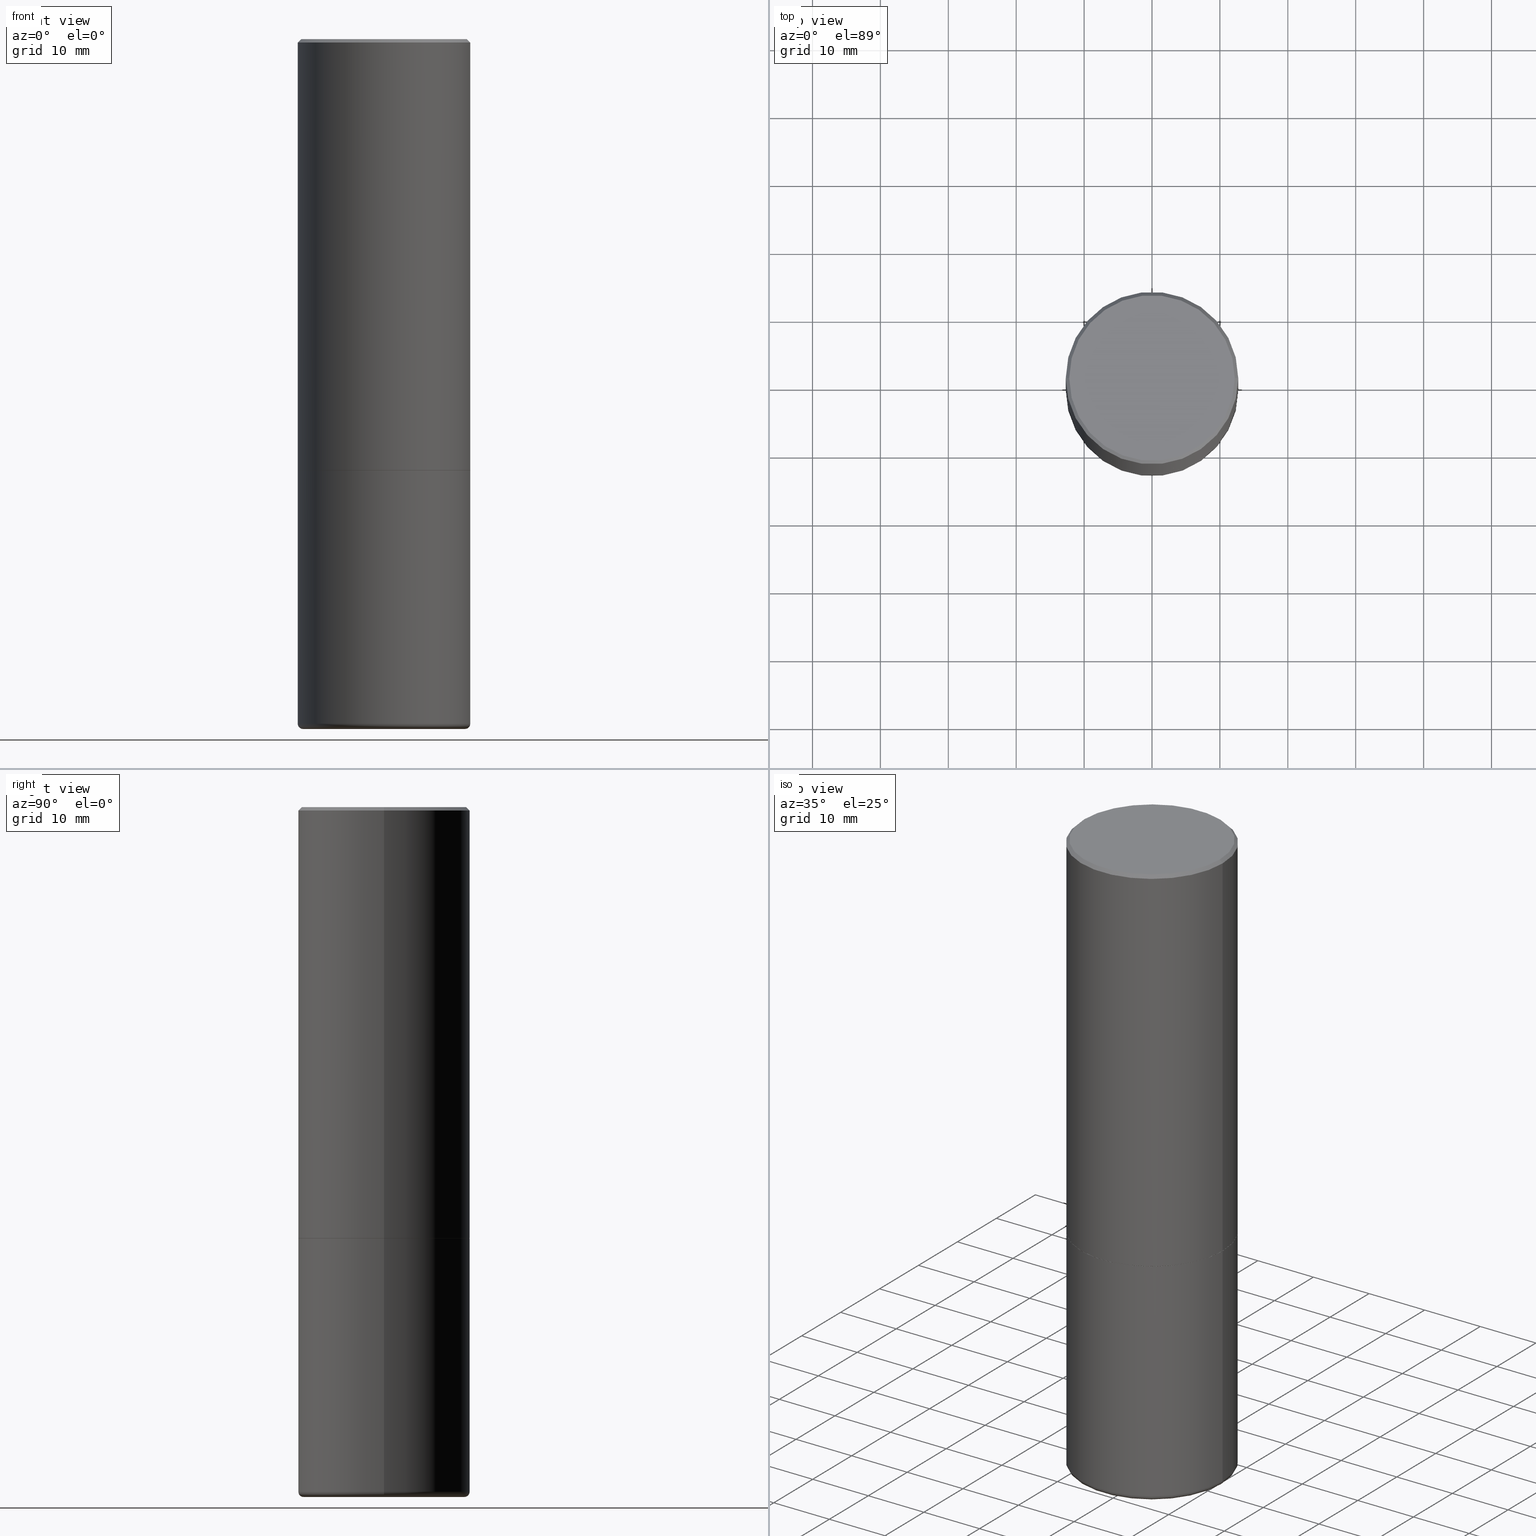
[diagram: canonical four-view strip — front | top / right | iso, engineering-drawing reading convention]
A machine part, canonical four-view strip (front | top / right | iso — engineering-drawing reading convention). The complete STEP part file that produces these views, byte-faithful:
ISO-10303-21;
HEADER;
FILE_DESCRIPTION (( 'STEP AP203' ),
    '1' );
FILE_NAME ('32587.STEP',
    '2022-04-26T19:38:57',
    ( '' ),
    ( '' ),
    'SwSTEP 2.0',
    'SolidWorks 2022',
    '' );
FILE_SCHEMA (( 'CONFIG_CONTROL_DESIGN' ));
ENDSEC;

DATA;
#1 = ORIENTED_EDGE ( 'NONE', *, *, #436, .T. ) ;
#2 = FACE_OUTER_BOUND ( 'NONE', #15, .T. ) ;
#3 = ADVANCED_FACE ( 'NONE', ( #276 ), #169, .T. ) ;
#4 = UNCERTAINTY_MEASURE_WITH_UNIT (LENGTH_MEASURE( 1.000000000000000082E-05 ), #13, 'distance_accuracy_value', 'NONE');
#5 = APPROVAL_PERSON_ORGANIZATION ( #420, #324, #385 ) ;
#6 = ORIENTED_EDGE ( 'NONE', *, *, #272, .F. ) ;
#7 = DIRECTION ( 'NONE',  ( -2.445468806185136597E-29, 3.491481338843145583E-15, 1.000000000000000000 ) ) ;
#8 = ORIENTED_EDGE ( 'NONE', *, *, #368, .F. ) ;
#9 = DIRECTION ( 'NONE',  ( 1.000000000000000000, -6.982962677686266711E-15, 4.883557194083113462E-29 ) ) ;
#10 = EDGE_LOOP ( 'NONE', ( #389, #309, #267, #390 ) ) ;
#11 = MECHANICAL_CONTEXT ( 'NONE', #233, 'mechanical' ) ;
#12 = ORIENTED_EDGE ( 'NONE', *, *, #439, .T. ) ;
#13 =( CONVERSION_BASED_UNIT ( 'INCH', #112 ) LENGTH_UNIT ( ) NAMED_UNIT ( #176 ) );
#14 = DIRECTION ( 'NONE',  ( -2.445468806185136597E-29, 3.491481338843145583E-15, 1.000000000000000000 ) ) ;
#15 = EDGE_LOOP ( 'NONE', ( #378, #278, #269, #28 ) ) ;
#16 = CARTESIAN_POINT ( 'NONE',  ( 9.708511160554992872E-29, -1.386118091520728738E-14, -3.970000000000000195 ) ) ;
#17 = CARTESIAN_POINT ( 'NONE',  ( 9.708511160554992872E-29, -1.386118091520728738E-14, -3.970000000000000195 ) ) ;
#18 = DIRECTION ( 'NONE',  ( 0.000000000000000000, 0.000000000000000000, 1.000000000000000000 ) ) ;
#19 = LINE ( 'NONE', #225, #262 ) ;
#20 = EDGE_CURVE ( 'NONE', #441, #374, #270, .T. ) ;
#21 = APPROVAL_STATUS ( 'not_yet_approved' ) ;
#22 = CALENDAR_DATE ( 2022, 26, 4 ) ;
#23 = COORDINATED_UNIVERSAL_TIME_OFFSET ( 5, 0, .BEHIND. ) ;
#24 = COORDINATED_UNIVERSAL_TIME_OFFSET ( 5, 0, .BEHIND. ) ;
#25 = AXIS2_PLACEMENT_3D ( 'NONE', #16, #331, #9 ) ;
#26 = FACE_OUTER_BOUND ( 'NONE', #402, .T. ) ;
#27 = DIRECTION ( 'NONE',  ( 0.7071067811868130271, -2.468850131085038979E-15, 0.7071067811862817853 ) ) ;
#28 = ORIENTED_EDGE ( 'NONE', *, *, #94, .F. ) ;
#29 = DIRECTION ( 'NONE',  ( 1.000000000000000000, -6.982962677686266711E-15, 0.000000000000000000 ) ) ;
#30 = DIRECTION ( 'NONE',  ( 2.445468806185136597E-29, -3.491481338843145583E-15, -1.000000000000000000 ) ) ;
#31 = EDGE_CURVE ( 'NONE', #172, #117, #333, .T. ) ;
#32 = CARTESIAN_POINT ( 'NONE',  ( -0.4699999999999999734, -1.052163005713481828E-14, -3.970000000000000195 ) ) ;
#33 = CIRCLE ( 'NONE', #353, 0.4694764278068817021 ) ;
#34 = APPROVAL_PERSON_ORGANIZATION ( #197, #242, #338 ) ;
#35 = VERTEX_POINT ( 'NONE', #292 ) ;
#36 = DIRECTION ( 'NONE',  ( -2.445468806185136597E-29, 3.491481338843145583E-15, 1.000000000000000000 ) ) ;
#37 = DIRECTION ( 'NONE',  ( 1.000000000000000000, -6.982962677686265133E-15, 0.000000000000000000 ) ) ;
#38 = CC_DESIGN_PERSON_AND_ORGANIZATION_ASSIGNMENT ( #60, #300, ( #122 ) ) ;
#39 = CARTESIAN_POINT ( 'NONE',  ( -0.4799999999999996492, 3.386736898677836830E-15, 1.280553747027767124E-17 ) ) ;
#40 = AXIS2_PLACEMENT_3D ( 'NONE', #65, #308, #78 ) ;
#41 = CIRCLE ( 'NONE', #114, 0.4989999999999999991 ) ;
#42 = CC_DESIGN_SECURITY_CLASSIFICATION ( #405, ( #320 ) ) ;
#43 = CARTESIAN_POINT ( 'NONE',  ( 9.781864051038224708E-29, -1.396590940228700310E-14, -3.999995430854691669 ) ) ;
#44 = EDGE_LOOP ( 'NONE', ( #355, #79 ) ) ;
#45 = VERTEX_POINT ( 'NONE', #98 ) ;
#46 =( NAMED_UNIT ( * ) PLANE_ANGLE_UNIT ( ) SI_UNIT ( $, .RADIAN. ) );
#47 = ORIENTED_EDGE ( 'NONE', *, *, #410, .F. ) ;
#48 = ADVANCED_FACE ( 'NONE', ( #26 ), #100, .T. ) ;
#49 = LINE ( 'NONE', #183, #397 ) ;
#50 = FACE_OUTER_BOUND ( 'NONE', #326, .T. ) ;
#51 = ORIENTED_EDGE ( 'NONE', *, *, #133, .T. ) ;
#52 = LOCAL_TIME ( 15, 38, 57.00000000000000000, #431 ) ;
#53 = CARTESIAN_POINT ( 'NONE',  ( 9.781864051038224708E-29, -1.396590940228700310E-14, -3.999995430854691669 ) ) ;
#54 = DIRECTION ( 'NONE',  ( 1.000000000000000000, -6.982962677686266711E-15, 0.000000000000000000 ) ) ;
#55 = CARTESIAN_POINT ( 'NONE',  ( 0.000000000000000000, 0.000000000000000000, 0.000000000000000000 ) ) ;
#56 = EDGE_CURVE ( 'NONE', #192, #45, #58, .T. ) ;
#57 = CYLINDRICAL_SURFACE ( 'NONE', #425, 0.4999999999999998335 ) ;
#58 = CIRCLE ( 'NONE', #125, 0.5000000000000000000 ) ;
#59 = AXIS2_PLACEMENT_3D ( 'NONE', #321, #7, #144 ) ;
#60 = PERSON_AND_ORGANIZATION ( #120, #201 ) ;
#61 = APPROVAL_STATUS ( 'not_yet_approved' ) ;
#62 = PLANE ( 'NONE',  #215 ) ;
#63 = AXIS2_PLACEMENT_3D ( 'NONE', #32, #379, #177 ) ;
#64 = LINE ( 'NONE', #127, #340 ) ;
#65 = CARTESIAN_POINT ( 'NONE',  ( 6.113672015462842613E-29, -8.728703347107864943E-15, -2.500000000000000000 ) ) ;
#66 = CARTESIAN_POINT ( 'NONE',  ( 6.113672015462840371E-29, -8.728703347107863365E-15, -2.499999999999999556 ) ) ;
#67 = ADVANCED_FACE ( 'NONE', ( #296 ), #121, .T. ) ;
#68 = ORIENTED_EDGE ( 'NONE', *, *, #287, .F. ) ;
#69 = CARTESIAN_POINT ( 'NONE',  ( 4.890937612370301184E-31, -6.982962677686329819E-17, -0.02000000000000011144 ) ) ;
#70 = ORIENTED_EDGE ( 'NONE', *, *, #94, .T. ) ;
#71 = CIRCLE ( 'NONE', #130, 0.5000000000000000000 ) ;
#72 = PLANE ( 'NONE',  #373 ) ;
#73 = CONICAL_SURFACE ( 'NONE', #413, 0.4989999999999999991, 0.7853981633978239785 ) ;
#74 = AXIS2_PLACEMENT_3D ( 'NONE', #212, #273, #351 ) ;
#75 = CC_DESIGN_APPROVAL ( #242, ( #405 ) ) ;
#76 = ORIENTED_EDGE ( 'NONE', *, *, #371, .T. ) ;
#77 = FACE_OUTER_BOUND ( 'NONE', #10, .T. ) ;
#78 = DIRECTION ( 'NONE',  ( 1.000000000000000000, -6.982962677686269077E-15, 0.000000000000000000 ) ) ;
#79 = ORIENTED_EDGE ( 'NONE', *, *, #199, .T. ) ;
#80 = DIRECTION ( 'NONE',  ( 1.000000000000000000, -6.982962677686267499E-15, 4.876036955247132767E-29 ) ) ;
#81 = CALENDAR_DATE ( 2022, 26, 4 ) ;
#82 = CIRCLE ( 'NONE', #302, 0.5000000000000000000 ) ;
#83 = VERTEX_POINT ( 'NONE', #124 ) ;
#84 = LINE ( 'NONE', #148, #190 ) ;
#85 = EDGE_CURVE ( 'NONE', #35, #143, #19, .T. ) ;
#86 = ORIENTED_EDGE ( 'NONE', *, *, #228, .F. ) ;
#87 = COORDINATED_UNIVERSAL_TIME_OFFSET ( 5, 0, .BEHIND. ) ;
#88 = FACE_OUTER_BOUND ( 'NONE', #218, .T. ) ;
#89 = ORIENTED_EDGE ( 'NONE', *, *, #410, .T. ) ;
#90 = CARTESIAN_POINT ( 'NONE',  ( 6.113672015462840371E-29, -8.728703347107863365E-15, -2.499999999999999556 ) ) ;
#91 = CC_DESIGN_PERSON_AND_ORGANIZATION_ASSIGNMENT ( #416, #223, ( #187 ) ) ;
#92 = CARTESIAN_POINT ( 'NONE',  ( 6.111226546656657010E-29, -8.725211865769021935E-15, -2.499000000000000110 ) ) ;
#93 = MANIFOLD_SOLID_BREP ( 'Body-Move/Copy2[1]', #432 ) ;
#94 = EDGE_CURVE ( 'NONE', #143, #117, #71, .T. ) ;
#95 = CIRCLE ( 'NONE', #108, 0.4999999999999997224 ) ;
#96 = CARTESIAN_POINT ( 'NONE',  ( -0.5000000000000000000, -8.448070674724411945E-16, -2.499000000000000110 ) ) ;
#97 = ORIENTED_EDGE ( 'NONE', *, *, #287, .T. ) ;
#98 = CARTESIAN_POINT ( 'NONE',  ( -0.5000000000000000000, -1.030846723640678645E-14, -3.970000000000000195 ) ) ;
#99 = EDGE_LOOP ( 'NONE', ( #330, #178, #357, #412 ) ) ;
#100 = TOROIDAL_SURFACE ( 'NONE', #249, 0.4699999999999999734, 0.03000000000000003011 ) ;
#101 = EDGE_CURVE ( 'NONE', #352, #83, #380, .T. ) ;
#102 = CIRCLE ( 'NONE', #271, 0.5000000000000000000 ) ;
#103 = DIRECTION ( 'NONE',  ( -1.000000000000000000, 6.982962677686266711E-15, 0.000000000000000000 ) ) ;
#104 = CARTESIAN_POINT ( 'NONE',  ( -0.5000000000000000000, 3.552713678800500929E-15, -2.459467545127452891E-29 ) ) ;
#105 = CARTESIAN_POINT ( 'NONE',  ( -0.4999999999999997224, 3.421651712066268085E-15, -0.02000000000000011144 ) ) ;
#106 = VERTEX_POINT ( 'NONE', #193 ) ;
#107 = DIRECTION ( 'NONE',  ( -2.445468806185136877E-29, 3.491481338843145188E-15, 1.000000000000000000 ) ) ;
#108 = AXIS2_PLACEMENT_3D ( 'NONE', #152, #354, #328 ) ;
#109 = APPROVAL_PERSON_ORGANIZATION ( #336, #332, #230 ) ;
#110 = CARTESIAN_POINT ( 'NONE',  ( -3.131554243005659264E-46, 4.471029511141341874E-32, 1.280553747030123384E-17 ) ) ;
#111 = DIRECTION ( 'NONE',  ( 0.9998476951563912696, -6.920387862090559512E-15, -0.01745240643727627092 ) ) ;
#112 = LENGTH_MEASURE_WITH_UNIT ( LENGTH_MEASURE( 0.02539999999999999897 ), #217 );
#113 = EDGE_CURVE ( 'NONE', #289, #244, #64, .T. ) ;
#114 = AXIS2_PLACEMENT_3D ( 'NONE', #66, #204, #311 ) ;
#115 = EDGE_LOOP ( 'NONE', ( #118, #12, #216, #47 ) ) ;
#116 = DATE_AND_TIME ( #81, #256 ) ;
#117 = VERTEX_POINT ( 'NONE', #364 ) ;
#118 = ORIENTED_EDGE ( 'NONE', *, *, #196, .T. ) ;
#119 = PRODUCT_RELATED_PRODUCT_CATEGORY ( 'detail', '', ( #187 ) ) ;
#120 = PERSON ( 'UNSPECIFIED', 'UNSPECIFIED', 'UNSPECIFIED', ('UNSPECIFIED'), ('UNSPECIFIED'), ('UNSPECIFIED') ) ;
#121 = CYLINDRICAL_SURFACE ( 'NONE', #179, 0.5000000000000000000 ) ;
#122 = PRODUCT_DEFINITION ( 'UNKNOWN', '', #320, #184 ) ;
#123 = DIRECTION ( 'NONE',  ( 1.000000000000000000, -6.982962677686265922E-15, 0.000000000000000000 ) ) ;
#124 = CARTESIAN_POINT ( 'NONE',  ( 0.4799999999999996492, -3.396558832296480127E-15, 1.280553747032483033E-17 ) ) ;
#125 = AXIS2_PLACEMENT_3D ( 'NONE', #17, #232, #165 ) ;
#126 = CC_DESIGN_APPROVAL ( #324, ( #122 ) ) ;
#127 = CARTESIAN_POINT ( 'NONE',  ( -9.144539233152827906E-19, -1.393729761515964486E-14, -3.991800689325058382 ) ) ;
#128 = PERSON_AND_ORGANIZATION_ROLE ( 'design_supplier' ) ;
#129 = ADVANCED_FACE ( 'NONE', ( #88 ), #57, .T. ) ;
#130 = AXIS2_PLACEMENT_3D ( 'NONE', #92, #424, #266 ) ;
#131 = AXIS2_PLACEMENT_3D ( 'NONE', #53, #146, #123 ) ;
#132 = DIRECTION ( 'NONE',  ( -0.9998476951563912696, 6.920964387254060733E-15, -0.01745240643727627092 ) ) ;
#133 = EDGE_CURVE ( 'NONE', #83, #175, #227, .T. ) ;
#134 = DIRECTION ( 'NONE',  ( -2.445468806185136597E-29, 3.491481338843145583E-15, 1.000000000000000000 ) ) ;
#135 = ORIENTED_EDGE ( 'NONE', *, *, #337, .F. ) ;
#136 = PRODUCT_DEFINITION_SHAPE ( 'NONE', 'NONE',  #122 ) ;
#137 = AXIS2_PLACEMENT_3D ( 'NONE', #174, #350, #29 ) ;
#138 = CARTESIAN_POINT ( 'NONE',  ( 9.762462626014520432E-29, -1.393638316123623151E-14, -3.991800689325058382 ) ) ;
#139 = CYLINDRICAL_SURFACE ( 'NONE', #59, 0.5000000000000000000 ) ;
#140 = DIRECTION ( 'NONE',  ( -2.445468806185136597E-29, 3.491481338843145583E-15, 1.000000000000000000 ) ) ;
#141 = LINE ( 'NONE', #349, #388 ) ;
#142 =( GEOMETRIC_REPRESENTATION_CONTEXT ( 3 ) GLOBAL_UNCERTAINTY_ASSIGNED_CONTEXT ( ( #4 ) ) GLOBAL_UNIT_ASSIGNED_CONTEXT ( ( #13, #46, #392 ) ) REPRESENTATION_CONTEXT ( 'NONE', 'WORKASPACE' ) );
#143 = VERTEX_POINT ( 'NONE', #96 ) ;
#144 = DIRECTION ( 'NONE',  ( 1.000000000000000000, -6.982962677686266711E-15, 4.876176775795935793E-29 ) ) ;
#145 = ADVANCED_FACE ( 'NONE', ( #254 ), #62, .F. ) ;
#146 = DIRECTION ( 'NONE',  ( -2.445468806185136597E-29, 3.491481338843145583E-15, 1.000000000000000000 ) ) ;
#147 = EDGE_LOOP ( 'NONE', ( #185, #1, #222, #314 ) ) ;
#148 = CARTESIAN_POINT ( 'NONE',  ( 0.4999999999999998335, -3.491481338843132566E-15, 2.438088387897967336E-29 ) ) ;
#149 = AXIS2_PLACEMENT_3D ( 'NONE', #291, #220, #322 ) ;
#150 = ORIENTED_EDGE ( 'NONE', *, *, #272, .T. ) ;
#151 = DIRECTION ( 'NONE',  ( -1.000000000000000000, 6.982962677686265922E-15, -4.876176775795935793E-29 ) ) ;
#152 = CARTESIAN_POINT ( 'NONE',  ( 4.890937612370301184E-31, -6.982962677686329819E-17, -0.02000000000000011144 ) ) ;
#153 = CARTESIAN_POINT ( 'NONE',  ( 0.4989999999999999991, -1.221320172327330913E-14, -2.499999999999999556 ) ) ;
#154 = DIRECTION ( 'NONE',  ( -2.445468806185136597E-29, 3.491481338843145583E-15, 1.000000000000000000 ) ) ;
#155 = AXIS2_PLACEMENT_3D ( 'NONE', #90, #134, #54 ) ;
#156 = LOCAL_TIME ( 15, 38, 57.00000000000000000, #195 ) ;
#157 = CALENDAR_DATE ( 2022, 26, 4 ) ;
#158 = ADVANCED_FACE ( 'NONE', ( #306 ), #381, .F. ) ;
#159 = APPROVAL_DATE_TIME ( #198, #242 ) ;
#160 = PERSON_AND_ORGANIZATION_ROLE ( 'classification_officer' ) ;
#161 = AXIS2_PLACEMENT_3D ( 'NONE', #167, #313, #239 ) ;
#162 = DATE_AND_TIME ( #157, #156 ) ;
#163 = DIRECTION ( 'NONE',  ( 1.000000000000000000, -6.982962677686267499E-15, 4.876036955247132767E-29 ) ) ;
#164 = CC_DESIGN_PERSON_AND_ORGANIZATION_ASSIGNMENT ( #294, #160, ( #405 ) ) ;
#165 = DIRECTION ( 'NONE',  ( 1.000000000000000000, -6.982962677686266711E-15, 0.000000000000000000 ) ) ;
#166 = ORIENTED_EDGE ( 'NONE', *, *, #113, .F. ) ;
#167 = CARTESIAN_POINT ( 'NONE',  ( 0.000000000000000000, 0.000000000000000000, 0.000000000000000000 ) ) ;
#168 = ADVANCED_FACE ( 'NONE', ( #343 ), #288, .T. ) ;
#169 = CONICAL_SURFACE ( 'NONE', #207, 0.4999999999999997224, 0.7853981633974467247 ) ;
#170 = TOROIDAL_SURFACE ( 'NONE', #25, 0.4699999999999999734, 0.03000000000000003011 ) ;
#171 = DIRECTION ( 'NONE',  ( 2.438088387897960049E-29, -3.491481338843145188E-15, -1.000000000000000000 ) ) ;
#172 = VERTEX_POINT ( 'NONE', #268 ) ;
#173 = ORIENTED_EDGE ( 'NONE', *, *, #20, .T. ) ;
#174 = CARTESIAN_POINT ( 'NONE',  ( 6.113672015462840371E-29, -8.728703347107863365E-15, -2.499999999999999556 ) ) ;
#175 = VERTEX_POINT ( 'NONE', #221 ) ;
#176 = DIMENSIONAL_EXPONENTS ( 1.000000000000000000, 0.000000000000000000, 0.000000000000000000, 0.000000000000000000, 0.000000000000000000, 0.000000000000000000, 0.000000000000000000 ) ;
#177 = DIRECTION ( 'NONE',  ( -1.000000000000000000, 7.105427357600985293E-15, 0.000000000000000000 ) ) ;
#178 = ORIENTED_EDGE ( 'NONE', *, *, #85, .T. ) ;
#179 = AXIS2_PLACEMENT_3D ( 'NONE', #427, #14, #194 ) ;
#180 = FACE_OUTER_BOUND ( 'NONE', #297, .T. ) ;
#181 = CIRCLE ( 'NONE', #327, 0.4799999999999996492 ) ;
#182 = ADVANCED_FACE ( 'NONE', ( #50 ), #191, .F. ) ;
#183 = CARTESIAN_POINT ( 'NONE',  ( -0.4999999999999998335, 3.552713678800499746E-15, -2.459467545127452330E-29 ) ) ;
#184 = DESIGN_CONTEXT ( 'detailed design', #406, 'design' ) ;
#185 = ORIENTED_EDGE ( 'NONE', *, *, #206, .F. ) ;
#186 = EDGE_LOOP ( 'NONE', ( #418, #285, #347 ) ) ;
#187 = PRODUCT ( '32587', '32587', '', ( #11 ) ) ;
#188 = ORIENTED_EDGE ( 'NONE', *, *, #371, .F. ) ;
#189 = AXIS2_PLACEMENT_3D ( 'NONE', #372, #154, #163 ) ;
#190 = VECTOR ( 'NONE', #363, 39.37007874015748143 ) ;
#191 = PLANE ( 'NONE',  #312 ) ;
#192 = VERTEX_POINT ( 'NONE', #391 ) ;
#193 = CARTESIAN_POINT ( 'NONE',  ( 0.4694764278068821461, -1.718675149525705111E-14, -3.999995430854691669 ) ) ;
#194 = DIRECTION ( 'NONE',  ( 1.000000000000000000, -6.982962677686266711E-15, 4.876176775795935793E-29 ) ) ;
#195 = COORDINATED_UNIVERSAL_TIME_OFFSET ( 5, 0, .BEHIND. ) ;
#196 = EDGE_CURVE ( 'NONE', #117, #143, #367, .T. ) ;
#197 = PERSON_AND_ORGANIZATION ( #120, #201 ) ;
#198 = DATE_AND_TIME ( #301, #304 ) ;
#199 = EDGE_CURVE ( 'NONE', #83, #352, #181, .T. ) ;
#200 = CARTESIAN_POINT ( 'NONE',  ( 6.113672015462842613E-29, -8.728703347107864943E-15, -2.500000000000000000 ) ) ;
#201 = ORGANIZATION ( 'UNSPECIFIED', 'UNSPECIFIED', '' ) ;
#202 = CARTESIAN_POINT ( 'NONE',  ( 9.708511160554992872E-29, -1.386118091520728738E-14, -3.970000000000000195 ) ) ;
#203 = ORIENTED_EDGE ( 'NONE', *, *, #206, .T. ) ;
#204 = DIRECTION ( 'NONE',  ( -2.445468806185136597E-29, 3.491481338843145583E-15, 1.000000000000000000 ) ) ;
#205 = DIRECTION ( 'NONE',  ( 1.000000000000000000, -6.982962677686266711E-15, 0.000000000000000000 ) ) ;
#206 = EDGE_CURVE ( 'NONE', #244, #45, #263, .T. ) ;
#207 = AXIS2_PLACEMENT_3D ( 'NONE', #408, #30, #235 ) ;
#208 = AXIS2_PLACEMENT_3D ( 'NONE', #290, #140, #37 ) ;
#209 = CARTESIAN_POINT ( 'NONE',  ( 6.113672015462842613E-29, -8.728703347107864943E-15, -2.500000000000000000 ) ) ;
#210 = CARTESIAN_POINT ( 'NONE',  ( -0.4999999999999997224, 3.421651712066268085E-15, -0.02000000000000011144 ) ) ;
#211 = ORIENTED_EDGE ( 'NONE', *, *, #395, .T. ) ;
#212 = CARTESIAN_POINT ( 'NONE',  ( 4.890937612370301184E-31, -6.982962677686329819E-17, -0.02000000000000011144 ) ) ;
#213 = ADVANCED_FACE ( 'NONE', ( #316 ), #72, .F. ) ;
#214 = DIRECTION ( 'NONE',  ( -2.445468806185136597E-29, 3.491481338843145583E-15, 1.000000000000000000 ) ) ;
#215 = AXIS2_PLACEMENT_3D ( 'NONE', #200, #360, #307 ) ;
#216 = ORIENTED_EDGE ( 'NONE', *, *, #428, .F. ) ;
#217 =( LENGTH_UNIT ( ) NAMED_UNIT ( * ) SI_UNIT ( $, .METRE. ) );
#218 = EDGE_LOOP ( 'NONE', ( #382, #70, #89, #135 ) ) ;
#219 = ORIENTED_EDGE ( 'NONE', *, *, #20, .F. ) ;
#220 = DIRECTION ( 'NONE',  ( -6.982962677686266711E-15, -1.000000000000000000, 3.491481338843145583E-15 ) ) ;
#221 = CARTESIAN_POINT ( 'NONE',  ( 0.4999999999999997224, -3.500078625662627502E-15, -0.02000000000000011144 ) ) ;
#222 = ORIENTED_EDGE ( 'NONE', *, *, #376, .T. ) ;
#223 = PERSON_AND_ORGANIZATION_ROLE ( 'design_owner' ) ;
#224 = CIRCLE ( 'NONE', #149, 0.03000000000000002318 ) ;
#225 = CARTESIAN_POINT ( 'NONE',  ( -0.4989999999999999991, -5.183095095664963444E-15, -2.499999999999999556 ) ) ;
#226 = APPLICATION_PROTOCOL_DEFINITION ( 'international standard', 'config_control_design', 1994, #406 ) ;
#227 = LINE ( 'NONE', #335, #319 ) ;
#228 = EDGE_CURVE ( 'NONE', #35, #172, #426, .T. ) ;
#229 = VECTOR ( 'NONE', #111, 39.37007874015748143 ) ;
#230 = APPROVAL_ROLE ( '' ) ;
#231 = PERSON_AND_ORGANIZATION ( #120, #201 ) ;
#232 = DIRECTION ( 'NONE',  ( -2.445468806185136597E-29, 3.491481338843145583E-15, 1.000000000000000000 ) ) ;
#233 = APPLICATION_CONTEXT ( 'configuration controlled 3d designs of mechanical parts and assemblies' ) ;
#234 = DIRECTION ( 'NONE',  ( -2.445468806185136597E-29, 3.491481338843145583E-15, 1.000000000000000000 ) ) ;
#235 = DIRECTION ( 'NONE',  ( -1.000000000000000000, 6.982962677686266711E-15, 0.000000000000000000 ) ) ;
#236 = MANIFOLD_SOLID_BREP ( 'Body-Move/Copy2[2]', #396 ) ;
#237 = CONICAL_SURFACE ( 'NONE', #404, 0.4999999999999997224, 0.7853981633974467247 ) ;
#238 = LOCAL_TIME ( 15, 38, 57.00000000000000000, #24 ) ;
#239 = DIRECTION ( 'NONE',  ( 1.000000000000000000, -6.982962677686267499E-15, 4.876176775795936353E-29 ) ) ;
#240 = EDGE_LOOP ( 'NONE', ( #8, #86 ) ) ;
#241 = DIRECTION ( 'NONE',  ( -2.445468806185136877E-29, 3.491481338843145188E-15, 1.000000000000000000 ) ) ;
#242 = APPROVAL ( #61, 'UNSPECIFIED' ) ;
#243 = DIRECTION ( 'NONE',  ( 1.000000000000000000, -6.982962677686269077E-15, 0.000000000000000000 ) ) ;
#244 = VERTEX_POINT ( 'NONE', #411 ) ;
#245 = VECTOR ( 'NONE', #241, 39.37007874015748143 ) ;
#246 = FACE_OUTER_BOUND ( 'NONE', #186, .T. ) ;
#247 = CC_DESIGN_PERSON_AND_ORGANIZATION_ASSIGNMENT ( #430, #128, ( #320 ) ) ;
#248 = FACE_OUTER_BOUND ( 'NONE', #115, .T. ) ;
#249 = AXIS2_PLACEMENT_3D ( 'NONE', #202, #234, #339 ) ;
#250 = AXIS2_PLACEMENT_3D ( 'NONE', #383, #384, #375 ) ;
#251 = ORIENTED_EDGE ( 'NONE', *, *, #415, .T. ) ;
#252 = ADVANCED_FACE ( 'NONE', ( #77 ), #237, .T. ) ;
#253 = ORIENTED_EDGE ( 'NONE', *, *, #436, .F. ) ;
#254 = FACE_OUTER_BOUND ( 'NONE', #240, .T. ) ;
#255 = ADVANCED_FACE ( 'NONE', ( #2 ), #73, .T. ) ;
#256 = LOCAL_TIME ( 15, 38, 57.00000000000000000, #87 ) ;
#257 = DIRECTION ( 'NONE',  ( -2.445468806185136597E-29, 3.491481338843145583E-15, 1.000000000000000000 ) ) ;
#258 = EDGE_LOOP ( 'NONE', ( #323, #51, #281, #387 ) ) ;
#259 = CC_DESIGN_DATE_AND_TIME_ASSIGNMENT ( #398, #394, ( #405 ) ) ;
#260 = CARTESIAN_POINT ( 'NONE',  ( 0.000000000000000000, 0.000000000000000000, 0.000000000000000000 ) ) ;
#261 = SECURITY_CLASSIFICATION_LEVEL ( 'unclassified' ) ;
#262 = VECTOR ( 'NONE', #370, 39.37007874015748854 ) ;
#263 = CIRCLE ( 'NONE', #63, 0.03000000000000002318 ) ;
#264 = CC_DESIGN_APPROVAL ( #332, ( #320 ) ) ;
#265 = CALENDAR_DATE ( 2022, 26, 4 ) ;
#266 = DIRECTION ( 'NONE',  ( 1.000000000000000000, -6.982962677686265133E-15, 0.000000000000000000 ) ) ;
#267 = ORIENTED_EDGE ( 'NONE', *, *, #344, .T. ) ;
#268 = CARTESIAN_POINT ( 'NONE',  ( 0.4989999999999999991, -1.221320172327330913E-14, -2.499999999999999556 ) ) ;
#269 = ORIENTED_EDGE ( 'NONE', *, *, #31, .T. ) ;
#270 = CIRCLE ( 'NONE', #40, 0.5000000000000000000 ) ;
#271 = AXIS2_PLACEMENT_3D ( 'NONE', #209, #403, #243 ) ;
#272 = EDGE_CURVE ( 'NONE', #374, #441, #102, .T. ) ;
#273 = DIRECTION ( 'NONE',  ( -2.445468806185136597E-29, 3.491481338843145583E-15, 1.000000000000000000 ) ) ;
#274 = ORIENTED_EDGE ( 'NONE', *, *, #376, .F. ) ;
#275 = DIRECTION ( 'NONE',  ( -1.000000000000000000, 6.982962677686265922E-15, -4.876176775795935793E-29 ) ) ;
#276 = FACE_OUTER_BOUND ( 'NONE', #258, .T. ) ;
#277 = DIRECTION ( 'NONE',  ( 1.000000000000000000, -6.982962677686266711E-15, 0.000000000000000000 ) ) ;
#278 = ORIENTED_EDGE ( 'NONE', *, *, #228, .T. ) ;
#279 = EDGE_CURVE ( 'NONE', #45, #192, #82, .T. ) ;
#280 = CARTESIAN_POINT ( 'NONE',  ( 6.113672015462840371E-29, -8.728703347107863365E-15, -2.499999999999999556 ) ) ;
#281 = ORIENTED_EDGE ( 'NONE', *, *, #428, .T. ) ;
#282 = DIRECTION ( 'NONE',  ( 1.000000000000000000, 0.000000000000000000, 0.000000000000000000 ) ) ;
#283 = VERTEX_POINT ( 'NONE', #105 ) ;
#284 = CARTESIAN_POINT ( 'NONE',  ( -0.5000000000000000000, -7.742228452357075234E-15, -2.500000000000000000 ) ) ;
#285 = ORIENTED_EDGE ( 'NONE', *, *, #113, .T. ) ;
#286 = DIRECTION ( 'NONE',  ( -2.445468806185136877E-29, 3.491481338843145188E-15, 1.000000000000000000 ) ) ;
#287 = EDGE_CURVE ( 'NONE', #192, #374, #141, .T. ) ;
#288 = CONICAL_SURFACE ( 'NONE', #155, 0.4989999999999999991, 0.7853981633978239785 ) ;
#289 = VERTEX_POINT ( 'NONE', #138 ) ;
#290 = CARTESIAN_POINT ( 'NONE',  ( 6.111226546656657010E-29, -8.725211865769021935E-15, -2.499000000000000110 ) ) ;
#291 = CARTESIAN_POINT ( 'NONE',  ( 0.4699999999999999734, -1.714317337371983400E-14, -3.970000000000000195 ) ) ;
#292 = CARTESIAN_POINT ( 'NONE',  ( -0.4989999999999999991, -5.177796641316741831E-15, -2.499999999999999556 ) ) ;
#293 = ADVANCED_FACE ( 'NONE', ( #248 ), #346, .T. ) ;
#294 = PERSON_AND_ORGANIZATION ( #120, #201 ) ;
#295 = AXIS2_PLACEMENT_3D ( 'NONE', #55, #18, #282 ) ;
#296 = FACE_OUTER_BOUND ( 'NONE', #421, .T. ) ;
#297 = EDGE_LOOP ( 'NONE', ( #361, #76, #6, #68 ) ) ;
#298 = DATE_AND_TIME ( #265, #52 ) ;
#299 = ADVANCED_FACE ( 'NONE', ( #246 ), #438, .F. ) ;
#300 = PERSON_AND_ORGANIZATION_ROLE ( 'creator' ) ;
#301 = CALENDAR_DATE ( 2022, 26, 4 ) ;
#302 = AXIS2_PLACEMENT_3D ( 'NONE', #414, #345, #277 ) ;
#303 = ADVANCED_BREP_SHAPE_REPRESENTATION ( '32587', ( #93, #236, #295 ), #142 ) ;
#304 = LOCAL_TIME ( 15, 38, 57.00000000000000000, #23 ) ;
#305 = APPROVAL_DATE_TIME ( #116, #324 ) ;
#306 = FACE_OUTER_BOUND ( 'NONE', #318, .T. ) ;
#307 = DIRECTION ( 'NONE',  ( 1.000000000000000000, -6.982962677686265922E-15, 4.876176775795935793E-29 ) ) ;
#308 = DIRECTION ( 'NONE',  ( -2.445468806185136597E-29, 3.491481338843145583E-15, 1.000000000000000000 ) ) ;
#309 = ORIENTED_EDGE ( 'NONE', *, *, #101, .F. ) ;
#310 = CC_DESIGN_PERSON_AND_ORGANIZATION_ASSIGNMENT ( #231, #369, ( #320 ) ) ;
#311 = DIRECTION ( 'NONE',  ( 1.000000000000000000, -6.982962677686266711E-15, 0.000000000000000000 ) ) ;
#312 = AXIS2_PLACEMENT_3D ( 'NONE', #422, #329, #151 ) ;
#313 = DIRECTION ( 'NONE',  ( -2.445468806185136597E-29, 3.491481338843145583E-15, 1.000000000000000000 ) ) ;
#314 = ORIENTED_EDGE ( 'NONE', *, *, #279, .F. ) ;
#315 = DIRECTION ( 'NONE',  ( 2.445468806185136597E-29, -3.491481338843145583E-15, -1.000000000000000000 ) ) ;
#316 = FACE_OUTER_BOUND ( 'NONE', #44, .T. ) ;
#317 = ORIENTED_EDGE ( 'NONE', *, *, #56, .F. ) ;
#318 = EDGE_LOOP ( 'NONE', ( #166, #211, #253 ) ) ;
#319 = VECTOR ( 'NONE', #399, 39.37007874015748143 ) ;
#320 = PRODUCT_DEFINITION_FORMATION_WITH_SPECIFIED_SOURCE ( 'ANY', '', #187, .NOT_KNOWN. ) ;
#321 = CARTESIAN_POINT ( 'NONE',  ( 0.000000000000000000, 0.000000000000000000, 0.000000000000000000 ) ) ;
#322 = DIRECTION ( 'NONE',  ( 1.000000000000000000, -6.982962677686262766E-15, 0.000000000000000000 ) ) ;
#323 = ORIENTED_EDGE ( 'NONE', *, *, #199, .F. ) ;
#324 = APPROVAL ( #365, 'UNSPECIFIED' ) ;
#325 = APPLICATION_PROTOCOL_DEFINITION ( 'international standard', 'config_control_design', 1994, #233 ) ;
#326 = EDGE_LOOP ( 'NONE', ( #150, #173 ) ) ;
#327 = AXIS2_PLACEMENT_3D ( 'NONE', #110, #36, #80 ) ;
#328 = DIRECTION ( 'NONE',  ( 1.000000000000000000, -6.982962677686266711E-15, 0.000000000000000000 ) ) ;
#329 = DIRECTION ( 'NONE',  ( 2.438088387897960049E-29, -3.491481338843145188E-15, -1.000000000000000000 ) ) ;
#330 = ORIENTED_EDGE ( 'NONE', *, *, #368, .T. ) ;
#331 = DIRECTION ( 'NONE',  ( -2.445468806185136597E-29, 3.491481338843145583E-15, 1.000000000000000000 ) ) ;
#332 = APPROVAL ( #21, 'UNSPECIFIED' ) ;
#333 = LINE ( 'NONE', #153, #437 ) ;
#334 = LINE ( 'NONE', #423, #229 ) ;
#335 = CARTESIAN_POINT ( 'NONE',  ( 0.4999999999999997224, -3.500078625662627502E-15, -0.02000000000000011144 ) ) ;
#336 = PERSON_AND_ORGANIZATION ( #120, #201 ) ;
#337 = EDGE_CURVE ( 'NONE', #283, #175, #419, .T. ) ;
#338 = APPROVAL_ROLE ( '' ) ;
#339 = DIRECTION ( 'NONE',  ( 1.000000000000000000, -6.982962677686266711E-15, 4.883557194083113462E-29 ) ) ;
#340 = VECTOR ( 'NONE', #132, 39.37007874015748143 ) ;
#341 = VECTOR ( 'NONE', #440, 39.37007874015748143 ) ;
#342 = DATE_TIME_ROLE ( 'creation_date' ) ;
#343 = FACE_OUTER_BOUND ( 'NONE', #99, .T. ) ;
#344 = EDGE_CURVE ( 'NONE', #352, #283, #435, .T. ) ;
#345 = DIRECTION ( 'NONE',  ( -2.445468806185136597E-29, 3.491481338843145583E-15, 1.000000000000000000 ) ) ;
#346 = CYLINDRICAL_SURFACE ( 'NONE', #161, 0.4999999999999998335 ) ;
#347 = ORIENTED_EDGE ( 'NONE', *, *, #415, .F. ) ;
#348 = CIRCLE ( 'NONE', #131, 0.4694764278068817021 ) ;
#349 = CARTESIAN_POINT ( 'NONE',  ( 0.5000000000000000000, -3.491481338843133355E-15, 2.438088387897967896E-29 ) ) ;
#350 = DIRECTION ( 'NONE',  ( -2.445468806185136597E-29, 3.491481338843145583E-15, 1.000000000000000000 ) ) ;
#351 = DIRECTION ( 'NONE',  ( 1.000000000000000000, -6.982962677686266711E-15, 0.000000000000000000 ) ) ;
#352 = VERTEX_POINT ( 'NONE', #39 ) ;
#353 = AXIS2_PLACEMENT_3D ( 'NONE', #43, #214, #417 ) ;
#354 = DIRECTION ( 'NONE',  ( -2.445468806185136597E-29, 3.491481338843145583E-15, 1.000000000000000000 ) ) ;
#355 = ORIENTED_EDGE ( 'NONE', *, *, #101, .T. ) ;
#356 = ADVANCED_FACE ( 'NONE', ( #180 ), #139, .T. ) ;
#357 = ORIENTED_EDGE ( 'NONE', *, *, #196, .F. ) ;
#358 = ORIENTED_EDGE ( 'NONE', *, *, #279, .T. ) ;
#359 = FACE_OUTER_BOUND ( 'NONE', #147, .T. ) ;
#360 = DIRECTION ( 'NONE',  ( -2.438088387897960049E-29, 3.491481338843145188E-15, 1.000000000000000000 ) ) ;
#361 = ORIENTED_EDGE ( 'NONE', *, *, #56, .T. ) ;
#362 = AXIS2_PLACEMENT_3D ( 'NONE', #434, #433, #401 ) ;
#363 = DIRECTION ( 'NONE',  ( -2.445468806185136877E-29, 3.491481338843145188E-15, 1.000000000000000000 ) ) ;
#364 = CARTESIAN_POINT ( 'NONE',  ( 0.5000000000000000000, -1.221669320461215371E-14, -2.499000000000000110 ) ) ;
#365 = APPROVAL_STATUS ( 'not_yet_approved' ) ;
#366 = SHAPE_DEFINITION_REPRESENTATION ( #136, #303 ) ;
#367 = CIRCLE ( 'NONE', #208, 0.5000000000000000000 ) ;
#368 = EDGE_CURVE ( 'NONE', #172, #35, #41, .T. ) ;
#369 = PERSON_AND_ORGANIZATION_ROLE ( 'creator' ) ;
#370 = DIRECTION ( 'NONE',  ( -0.7071067811868130271, 7.493145998871311837E-15, 0.7071067811862817853 ) ) ;
#371 = EDGE_CURVE ( 'NONE', #45, #441, #407, .T. ) ;
#372 = CARTESIAN_POINT ( 'NONE',  ( -3.131554243005659264E-46, 4.471029511141341874E-32, 1.280553747030123384E-17 ) ) ;
#373 = AXIS2_PLACEMENT_3D ( 'NONE', #442, #171, #275 ) ;
#374 = VERTEX_POINT ( 'NONE', #377 ) ;
#375 = DIRECTION ( 'NONE',  ( -1.000000000000000000, 6.982962677686268288E-15, 0.000000000000000000 ) ) ;
#376 = EDGE_CURVE ( 'NONE', #106, #192, #224, .T. ) ;
#377 = CARTESIAN_POINT ( 'NONE',  ( 0.5000000000000000000, -1.222018468595099830E-14, -2.500000000000000000 ) ) ;
#378 = ORIENTED_EDGE ( 'NONE', *, *, #85, .F. ) ;
#379 = DIRECTION ( 'NONE',  ( 7.105427357601001859E-15, 1.000000000000000000, -3.491481338843145583E-15 ) ) ;
#380 = CIRCLE ( 'NONE', #189, 0.4799999999999996492 ) ;
#381 = CONICAL_SURFACE ( 'NONE', #362, 2255.510300424535671, 1.553343034274960566 ) ;
#382 = ORIENTED_EDGE ( 'NONE', *, *, #439, .F. ) ;
#383 = CARTESIAN_POINT ( 'NONE',  ( 1.060401235223605041E-27, -1.513971928452047507E-13, -43.36187942948253493 ) ) ;
#384 = DIRECTION ( 'NONE',  ( 2.445468806185136597E-29, -3.491481338843145583E-15, -1.000000000000000000 ) ) ;
#385 = APPROVAL_ROLE ( '' ) ;
#386 = ADVANCED_FACE ( 'NONE', ( #359 ), #170, .T. ) ;
#387 = ORIENTED_EDGE ( 'NONE', *, *, #344, .F. ) ;
#388 = VECTOR ( 'NONE', #107, 39.37007874015748143 ) ;
#389 = ORIENTED_EDGE ( 'NONE', *, *, #133, .F. ) ;
#390 = ORIENTED_EDGE ( 'NONE', *, *, #337, .T. ) ;
#391 = CARTESIAN_POINT ( 'NONE',  ( 0.5000000000000000000, -1.735266225405042074E-14, -3.970000000000000195 ) ) ;
#392 =( NAMED_UNIT ( * ) SI_UNIT ( $, .STERADIAN. ) SOLID_ANGLE_UNIT ( ) );
#393 = DIRECTION ( 'NONE',  ( 1.000000000000000000, -6.982962677686267499E-15, 4.876176775795936353E-29 ) ) ;
#394 = DATE_TIME_ROLE ( 'classification_date' ) ;
#395 = EDGE_CURVE ( 'NONE', #289, #106, #334, .T. ) ;
#396 = CLOSED_SHELL ( 'NONE', ( #168, #293, #3, #252, #129, #255, #145, #213 ) ) ;
#397 = VECTOR ( 'NONE', #286, 39.37007874015748143 ) ;
#398 = DATE_AND_TIME ( #22, #238 ) ;
#399 = DIRECTION ( 'NONE',  ( 0.7071067811865464625, -7.319954787623252890E-15, -0.7071067811865486830 ) ) ;
#400 = CC_DESIGN_DATE_AND_TIME_ASSIGNMENT ( #162, #342, ( #122 ) ) ;
#401 = DIRECTION ( 'NONE',  ( -1.000000000000000000, 6.982962677686268288E-15, 0.000000000000000000 ) ) ;
#402 = EDGE_LOOP ( 'NONE', ( #251, #203, #317, #274 ) ) ;
#403 = DIRECTION ( 'NONE',  ( -2.445468806185136597E-29, 3.491481338843145583E-15, 1.000000000000000000 ) ) ;
#404 = AXIS2_PLACEMENT_3D ( 'NONE', #69, #315, #103 ) ;
#405 = SECURITY_CLASSIFICATION ( '', '', #261 ) ;
#406 = APPLICATION_CONTEXT ( 'configuration controlled 3d designs of mechanical parts and assemblies' ) ;
#407 = LINE ( 'NONE', #104, #245 ) ;
#408 = CARTESIAN_POINT ( 'NONE',  ( 4.890937612370301184E-31, -6.982962677686329819E-17, -0.02000000000000011144 ) ) ;
#409 = DIRECTION ( 'NONE',  ( -2.445468806185136597E-29, 3.491481338843145583E-15, 1.000000000000000000 ) ) ;
#410 = EDGE_CURVE ( 'NONE', #117, #175, #84, .T. ) ;
#411 = CARTESIAN_POINT ( 'NONE',  ( -0.4694764278068821461, -1.068757302885807462E-14, -3.999995430854691669 ) ) ;
#412 = ORIENTED_EDGE ( 'NONE', *, *, #31, .F. ) ;
#413 = AXIS2_PLACEMENT_3D ( 'NONE', #280, #409, #205 ) ;
#414 = CARTESIAN_POINT ( 'NONE',  ( 9.708511160554992872E-29, -1.386118091520728738E-14, -3.970000000000000195 ) ) ;
#415 = EDGE_CURVE ( 'NONE', #106, #244, #33, .T. ) ;
#416 = PERSON_AND_ORGANIZATION ( #120, #201 ) ;
#417 = DIRECTION ( 'NONE',  ( 1.000000000000000000, -6.982962677686265922E-15, 0.000000000000000000 ) ) ;
#418 = ORIENTED_EDGE ( 'NONE', *, *, #395, .F. ) ;
#419 = CIRCLE ( 'NONE', #74, 0.4999999999999997224 ) ;
#420 = PERSON_AND_ORGANIZATION ( #120, #201 ) ;
#421 = EDGE_LOOP ( 'NONE', ( #188, #358, #97, #219 ) ) ;
#422 = CARTESIAN_POINT ( 'NONE',  ( 3.491481338843194098E-15, 0.4999999999999912292, -2.500000000000001776 ) ) ;
#423 = CARTESIAN_POINT ( 'NONE',  ( 9.144539235105191238E-19, -1.393729761515964486E-14, -3.991800689325058382 ) ) ;
#424 = DIRECTION ( 'NONE',  ( -2.445468806185136597E-29, 3.491481338843145583E-15, 1.000000000000000000 ) ) ;
#425 = AXIS2_PLACEMENT_3D ( 'NONE', #260, #257, #393 ) ;
#426 = CIRCLE ( 'NONE', #137, 0.4989999999999999991 ) ;
#427 = CARTESIAN_POINT ( 'NONE',  ( 0.000000000000000000, 0.000000000000000000, 0.000000000000000000 ) ) ;
#428 = EDGE_CURVE ( 'NONE', #175, #283, #95, .T. ) ;
#429 = APPROVAL_DATE_TIME ( #298, #332 ) ;
#430 = PERSON_AND_ORGANIZATION ( #120, #201 ) ;
#431 = COORDINATED_UNIVERSAL_TIME_OFFSET ( 5, 0, .BEHIND. ) ;
#432 = CLOSED_SHELL ( 'NONE', ( #356, #48, #158, #299, #386, #67, #182 ) ) ;
#433 = DIRECTION ( 'NONE',  ( 2.445468806185136597E-29, -3.491481338843145583E-15, -1.000000000000000000 ) ) ;
#434 = CARTESIAN_POINT ( 'NONE',  ( 1.060401235223605041E-27, -1.513971928452047507E-13, -43.36187942948253493 ) ) ;
#435 = LINE ( 'NONE', #210, #341 ) ;
#436 = EDGE_CURVE ( 'NONE', #244, #106, #348, .T. ) ;
#437 = VECTOR ( 'NONE', #27, 39.37007874015748854 ) ;
#438 = CONICAL_SURFACE ( 'NONE', #250, 2255.510300424535671, 1.553343034274960566 ) ;
#439 = EDGE_CURVE ( 'NONE', #143, #283, #49, .T. ) ;
#440 = DIRECTION ( 'NONE',  ( -0.7071067811865464625, 2.468850131082245228E-15, -0.7071067811865486830 ) ) ;
#441 = VERTEX_POINT ( 'NONE', #284 ) ;
#442 = CARTESIAN_POINT ( 'NONE',  ( 3.351822085289405181E-15, 0.4799999999999996492, -1.669508273909558064E-15 ) ) ;
ENDSEC;
END-ISO-10303-21;
